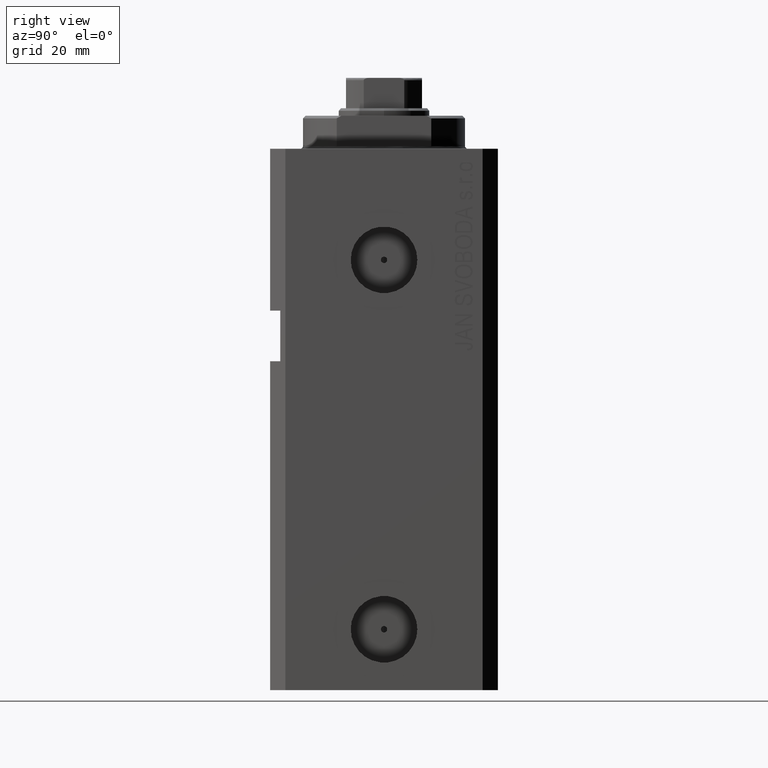
[diagram: clean part render]
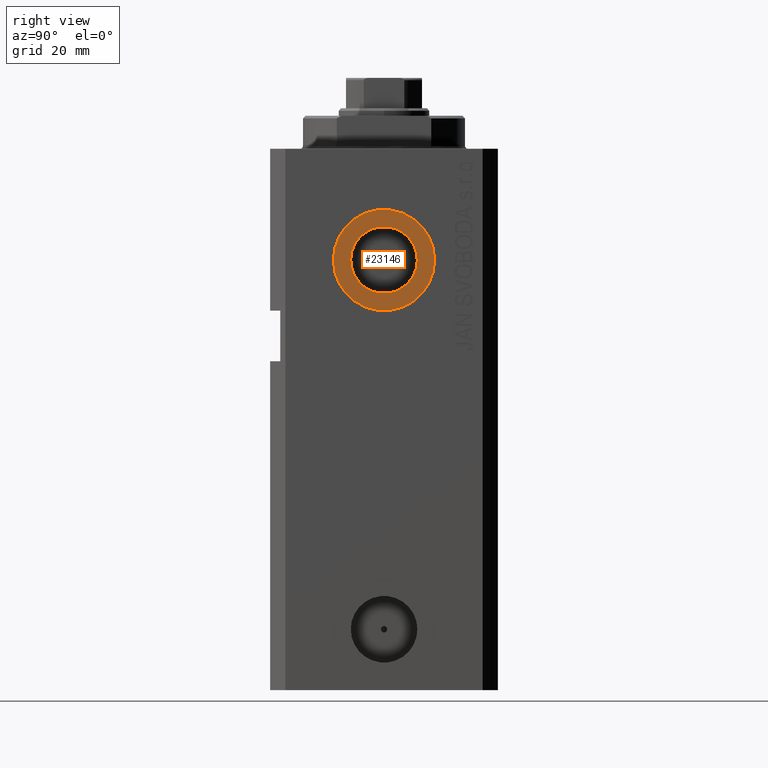
[diagram: same view with one face highlighted and labeled with its STEP entity id]
A machine part, right view. The second image highlights one B-rep face of the part: STEP entity #23146.
In plain terms, the highlighted planar face has unit normal (1, -0, 0).
Its self-contained STEP definition (entity closure, byte-faithful):
#543 = CARTESIAN_POINT ( 'NONE',  ( 32.39999999999690061, 9.999999999999568345, -22.00000000000000000 ) ) ;
#3604 = ORIENTED_EDGE ( 'NONE', *, *, #9410, .F. ) ;
#3799 = CARTESIAN_POINT ( 'NONE',  ( 32.39999999999668034, -6.580000000000433502, -22.00000000000000000 ) ) ;
#4830 = DIRECTION ( 'NONE',  ( 1.370906090437597808E-14, 1.000000000000000000, 0.000000000000000000 ) ) ;
#5100 = CARTESIAN_POINT ( 'NONE',  ( 32.39999999999677271, -4.323464663203420381E-13, -22.00000000000000000 ) ) ;
#7421 = EDGE_CURVE ( 'NONE', #20441, #30393, #37426, .T. ) ;
#7960 = CIRCLE ( 'NONE', #36304, 10.00000000000000000 ) ;
#8056 = PLANE ( 'NONE',  #31251 ) ;
#8509 = DIRECTION ( 'NONE',  ( 1.334402673828349134E-14, 1.000000000000000000, 0.000000000000000000 ) ) ;
#8685 = DIRECTION ( 'NONE',  ( 1.000000000000000000, -1.334402673828349134E-14, 0.000000000000000000 ) ) ;
#9410 = EDGE_CURVE ( 'NONE', #30393, #20441, #34580, .T. ) ;
#11476 = FACE_BOUND ( 'NONE', #14761, .T. ) ;
#13870 = CIRCLE ( 'NONE', #27642, 10.00000000000000000 ) ;
#14761 = EDGE_LOOP ( 'NONE', ( #3604, #27852 ) ) ;
#15113 = CARTESIAN_POINT ( 'NONE',  ( 32.39999999999677271, -4.323464663203420381E-13, -22.00000000000000000 ) ) ;
#16016 = VERTEX_POINT ( 'NONE', #44169 ) ;
#17807 = DIRECTION ( 'NONE',  ( 1.318389841742373392E-14, 1.000000000000000000, 0.000000000000000000 ) ) ;
#20097 = ORIENTED_EDGE ( 'NONE', *, *, #20828, .T. ) ;
#20441 = VERTEX_POINT ( 'NONE', #3799 ) ;
#20828 = EDGE_CURVE ( 'NONE', #42542, #16016, #7960, .T. ) ;
#22051 = ORIENTED_EDGE ( 'NONE', *, *, #24553, .T. ) ;
#23146 = ADVANCED_FACE ( 'NONE', ( #11476, #39227 ), #8056, .T. ) ;
#24553 = EDGE_CURVE ( 'NONE', #16016, #42542, #13870, .T. ) ;
#27642 = AXIS2_PLACEMENT_3D ( 'NONE', #31215, #38508, #17807 ) ;
#27852 = ORIENTED_EDGE ( 'NONE', *, *, #7421, .F. ) ;
#29422 = DIRECTION ( 'NONE',  ( 1.000000000000000000, -1.334402673828349134E-14, 0.000000000000000000 ) ) ;
#29822 = CARTESIAN_POINT ( 'NONE',  ( 32.39999999999677271, -4.323464663203420381E-13, -22.00000000000000000 ) ) ;
#30393 = VERTEX_POINT ( 'NONE', #36374 ) ;
#31215 = CARTESIAN_POINT ( 'NONE',  ( 32.39999999999677271, -4.323464663203420381E-13, -22.00000000000000000 ) ) ;
#31251 = AXIS2_PLACEMENT_3D ( 'NONE', #15113, #29422, #8509 ) ;
#32318 = DIRECTION ( 'NONE',  ( 1.318389841742373392E-14, 1.000000000000000000, 0.000000000000000000 ) ) ;
#33115 = AXIS2_PLACEMENT_3D ( 'NONE', #29822, #8685, #4830 ) ;
#34580 = CIRCLE ( 'NONE', #33115, 6.580000000000002736 ) ;
#36024 = DIRECTION ( 'NONE',  ( 1.000000000000000000, -1.334402673828349134E-14, 0.000000000000000000 ) ) ;
#36304 = AXIS2_PLACEMENT_3D ( 'NONE', #43257, #36411, #32318 ) ;
#36374 = CARTESIAN_POINT ( 'NONE',  ( 32.39999999999686509, 6.579999999999570193, -22.00000000000000000 ) ) ;
#36411 = DIRECTION ( 'NONE',  ( 1.000000000000000000, -1.334402673828349134E-14, 0.000000000000000000 ) ) ;
#37426 = CIRCLE ( 'NONE', #43255, 6.580000000000002736 ) ;
#38508 = DIRECTION ( 'NONE',  ( 1.000000000000000000, -1.334402673828349134E-14, 0.000000000000000000 ) ) ;
#39227 = FACE_OUTER_BOUND ( 'NONE', #43580, .T. ) ;
#42542 = VERTEX_POINT ( 'NONE', #543 ) ;
#43255 = AXIS2_PLACEMENT_3D ( 'NONE', #5100, #36024, #43541 ) ;
#43257 = CARTESIAN_POINT ( 'NONE',  ( 32.39999999999677271, -4.323464663203420381E-13, -22.00000000000000000 ) ) ;
#43541 = DIRECTION ( 'NONE',  ( 1.370906090437597808E-14, 1.000000000000000000, 0.000000000000000000 ) ) ;
#43580 = EDGE_LOOP ( 'NONE', ( #20097, #22051 ) ) ;
#44169 = CARTESIAN_POINT ( 'NONE',  ( 32.39999999999663771, -10.00000000000043165, -22.00000000000000000 ) ) ;